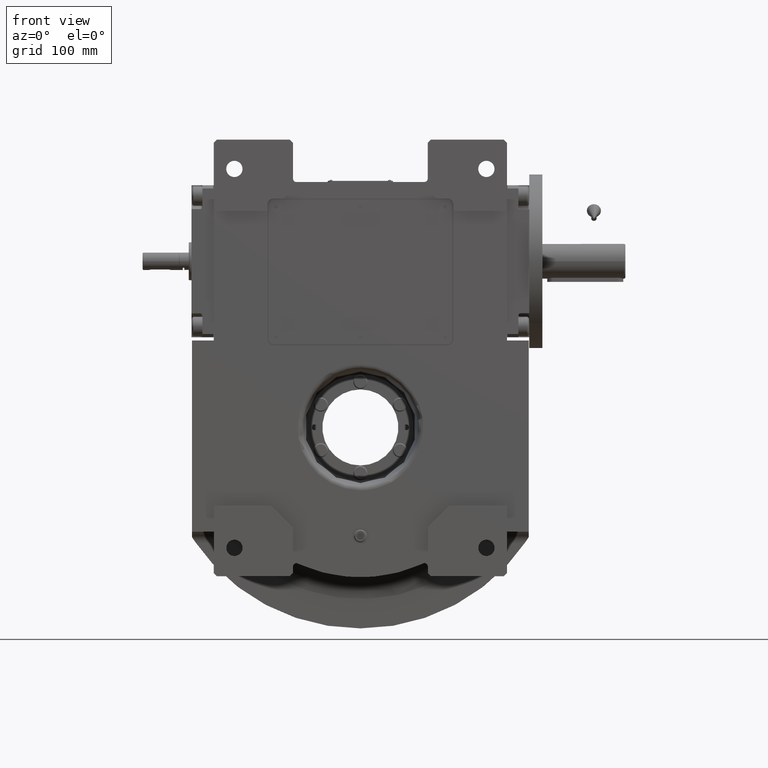
[diagram: clean part render]
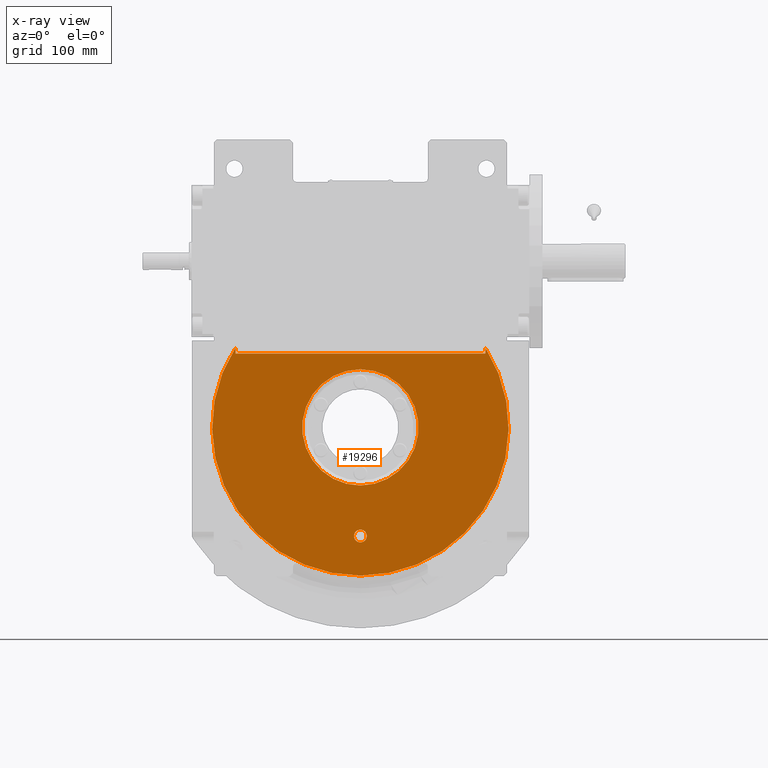
[diagram: x-ray — body ghosted, one internal face saturated and labeled with its STEP entity id]
A machine part, front view, then the same camera in x-ray: the body is ghosted and one INTERNAL B-rep face — a face not visible from any outside direction — is saturated and labeled: STEP entity #19296.
In plain terms, the highlighted planar face has unit normal (0, -1, 0).
Its self-contained STEP definition (entity closure, byte-faithful):
#1072 = VECTOR ( 'NONE', #15453, 1000.000000000000000 ) ;
#1153 = DIRECTION ( 'NONE',  ( 0.000000000000000000, 0.000000000000000000, 1.000000000000000000 ) ) ;
#2693 = FACE_BOUND ( 'NONE', #50567, .T. ) ;
#3188 = CARTESIAN_POINT ( 'NONE',  ( 0.000000000000000000, -63.00000000000000000, 0.000000000000000000 ) ) ;
#3510 = CARTESIAN_POINT ( 'NONE',  ( -115.0000000000000000, -63.00000000000000000, 73.53400573884168523 ) ) ;
#4661 = CARTESIAN_POINT ( 'NONE',  ( 115.0000000000000000, -63.00000000000000000, 73.53400573884168523 ) ) ;
#4923 = CARTESIAN_POINT ( 'NONE',  ( 0.000000000000000000, -63.00000000000000000, -53.50000000000000000 ) ) ;
#5794 = LINE ( 'NONE', #55334, #27702 ) ;
#6087 = CARTESIAN_POINT ( 'NONE',  ( 0.000000000000000000, -63.00000000000000000, -100.0000000000000000 ) ) ;
#6922 = EDGE_CURVE ( 'NONE', #20466, #66816, #22382, .T. ) ;
#8140 = DIRECTION ( 'NONE',  ( 0.000000000000000000, 1.000000000000000000, 0.000000000000000000 ) ) ;
#8317 = EDGE_CURVE ( 'NONE', #66816, #20466, #19549, .T. ) ;
#9203 = CARTESIAN_POINT ( 'NONE',  ( 0.000000000000000000, -63.00000000000000000, 0.000000000000000000 ) ) ;
#11272 = EDGE_CURVE ( 'NONE', #19346, #42800, #67191, .T. ) ;
#11755 = DIRECTION ( 'NONE',  ( 0.000000000000000000, 1.000000000000000000, 0.000000000000000000 ) ) ;
#11895 = EDGE_LOOP ( 'NONE', ( #26723, #18945, #23311, #21326, #60848 ) ) ;
#12621 = CARTESIAN_POINT ( 'NONE',  ( 0.000000000000000000, -63.00000000000000000, -136.5000000000000000 ) ) ;
#12823 = EDGE_CURVE ( 'NONE', #58339, #41203, #20801, .T. ) ;
#12958 = DIRECTION ( 'NONE',  ( 0.000000000000000000, -1.000000000000000000, 1.836909530733564901E-16 ) ) ;
#15453 = DIRECTION ( 'NONE',  ( 0.000000000000000000, 0.000000000000000000, 1.000000000000000000 ) ) ;
#16043 = ORIENTED_EDGE ( 'NONE', *, *, #68227, .F. ) ;
#17121 = DIRECTION ( 'NONE',  ( 0.000000000000000000, 0.000000000000000000, 1.000000000000000000 ) ) ;
#17605 = CARTESIAN_POINT ( 'NONE',  ( 6.551860375438339893E-15, -63.00000000000000000, 53.50000000000000000 ) ) ;
#18945 = ORIENTED_EDGE ( 'NONE', *, *, #29056, .F. ) ;
#19195 = EDGE_LOOP ( 'NONE', ( #16043, #24041 ) ) ;
#19296 = ADVANCED_FACE ( 'NONE', ( #29293, #2693, #39919 ), #29638, .F. ) ;
#19346 = VERTEX_POINT ( 'NONE', #17605 ) ;
#19549 = CIRCLE ( 'NONE', #68140, 5.875000000000000000 ) ;
#19762 = AXIS2_PLACEMENT_3D ( 'NONE', #65763, #12958, #66808 ) ;
#20466 = VERTEX_POINT ( 'NONE', #53568 ) ;
#20598 = DIRECTION ( 'NONE',  ( -1.000000000000000000, 0.000000000000000000, 0.000000000000000000 ) ) ;
#20801 = LINE ( 'NONE', #42390, #1072 ) ;
#21024 = VERTEX_POINT ( 'NONE', #66145 ) ;
#21326 = ORIENTED_EDGE ( 'NONE', *, *, #33975, .T. ) ;
#22382 = CIRCLE ( 'NONE', #47215, 5.875000000000000000 ) ;
#23311 = ORIENTED_EDGE ( 'NONE', *, *, #58942, .T. ) ;
#24041 = ORIENTED_EDGE ( 'NONE', *, *, #11272, .F. ) ;
#24823 = DIRECTION ( 'NONE',  ( 0.000000000000000000, 0.000000000000000000, 1.000000000000000000 ) ) ;
#25537 = DIRECTION ( 'NONE',  ( 0.000000000000000000, 0.000000000000000000, 1.000000000000000000 ) ) ;
#26219 = CIRCLE ( 'NONE', #52161, 53.50000000000000000 ) ;
#26723 = ORIENTED_EDGE ( 'NONE', *, *, #12823, .F. ) ;
#27702 = VECTOR ( 'NONE', #17121, 1000.000000000000000 ) ;
#27730 = DIRECTION ( 'NONE',  ( -1.209434443846979996E-15, -1.000000000000000000, 1.209434443846979996E-15 ) ) ;
#28465 = AXIS2_PLACEMENT_3D ( 'NONE', #3188, #8140, #24823 ) ;
#29001 = CARTESIAN_POINT ( 'NONE',  ( 0.000000000000000000, -62.99999999999998579, 67.99999999999997158 ) ) ;
#29056 = EDGE_CURVE ( 'NONE', #21024, #58339, #54220, .T. ) ;
#29293 = FACE_OUTER_BOUND ( 'NONE', #11895, .T. ) ;
#29638 = PLANE ( 'NONE',  #19762 ) ;
#32224 = DIRECTION ( 'NONE',  ( 0.000000000000000000, 1.000000000000000000, 0.000000000000000000 ) ) ;
#33391 = DIRECTION ( 'NONE',  ( 0.000000000000000000, 1.000000000000000000, 0.000000000000000000 ) ) ;
#33402 = AXIS2_PLACEMENT_3D ( 'NONE', #9203, #32224, #25537 ) ;
#33975 = EDGE_CURVE ( 'NONE', #59093, #47946, #58961, .T. ) ;
#37153 = VECTOR ( 'NONE', #37597, 1000.000000000000000 ) ;
#37597 = DIRECTION ( 'NONE',  ( -1.000000000000000000, 0.000000000000000000, 0.000000000000000000 ) ) ;
#39919 = FACE_BOUND ( 'NONE', #19195, .T. ) ;
#41203 = VERTEX_POINT ( 'NONE', #3510 ) ;
#42283 = ORIENTED_EDGE ( 'NONE', *, *, #8317, .T. ) ;
#42390 = CARTESIAN_POINT ( 'NONE',  ( -115.0000000000000000, -63.00000000000000000, 0.000000000000000000 ) ) ;
#42800 = VERTEX_POINT ( 'NONE', #4923 ) ;
#47215 = AXIS2_PLACEMENT_3D ( 'NONE', #6087, #27730, #49286 ) ;
#47470 = DIRECTION ( 'NONE',  ( 0.000000000000000000, -1.000000000000000000, 0.000000000000000000 ) ) ;
#47946 = VERTEX_POINT ( 'NONE', #12621 ) ;
#48091 = CIRCLE ( 'NONE', #33402, 136.5000000000000000 ) ;
#48269 = DIRECTION ( 'NONE',  ( 0.000000000000000000, 0.000000000000000000, 1.000000000000000000 ) ) ;
#48619 = CARTESIAN_POINT ( 'NONE',  ( 0.000000000000000000, -63.00000000000000000, 0.000000000000000000 ) ) ;
#49056 = EDGE_CURVE ( 'NONE', #47946, #41203, #48091, .T. ) ;
#49286 = DIRECTION ( 'NONE',  ( 1.000000000000000000, -2.362176648138630895E-15, 0.000000000000000000 ) ) ;
#50567 = EDGE_LOOP ( 'NONE', ( #64659, #42283 ) ) ;
#52161 = AXIS2_PLACEMENT_3D ( 'NONE', #54269, #11755, #1153 ) ;
#52440 = CARTESIAN_POINT ( 'NONE',  ( 0.000000000000000000, -63.00000000000000000, -100.0000000000000000 ) ) ;
#53338 = CARTESIAN_POINT ( 'NONE',  ( -115.0000000000000000, -63.00000000000000000, 67.99999999999997158 ) ) ;
#53568 = CARTESIAN_POINT ( 'NONE',  ( 5.875000000000000000, -63.00000000000000000, -100.0000000000000000 ) ) ;
#54220 = LINE ( 'NONE', #29001, #37153 ) ;
#54269 = CARTESIAN_POINT ( 'NONE',  ( 0.000000000000000000, -63.00000000000000000, 0.000000000000000000 ) ) ;
#55334 = CARTESIAN_POINT ( 'NONE',  ( 115.0000000000000000, -63.00000000000000000, 0.000000000000000000 ) ) ;
#58339 = VERTEX_POINT ( 'NONE', #53338 ) ;
#58942 = EDGE_CURVE ( 'NONE', #21024, #59093, #5794, .T. ) ;
#58961 = CIRCLE ( 'NONE', #28465, 136.5000000000000000 ) ;
#59093 = VERTEX_POINT ( 'NONE', #4661 ) ;
#60848 = ORIENTED_EDGE ( 'NONE', *, *, #49056, .T. ) ;
#61378 = CARTESIAN_POINT ( 'NONE',  ( -5.875000000000000000, -63.00000000000000000, -100.0000000000000000 ) ) ;
#62674 = AXIS2_PLACEMENT_3D ( 'NONE', #48619, #33391, #48269 ) ;
#64659 = ORIENTED_EDGE ( 'NONE', *, *, #6922, .T. ) ;
#65763 = CARTESIAN_POINT ( 'NONE',  ( 0.000000000000000000, -63.00000000000000000, 2.534751534906250014E-14 ) ) ;
#66145 = CARTESIAN_POINT ( 'NONE',  ( 115.0000000000000000, -63.00000000000000000, 67.99999999999997158 ) ) ;
#66808 = DIRECTION ( 'NONE',  ( 0.000000000000000000, 1.836909530733564901E-16, 1.000000000000000000 ) ) ;
#66816 = VERTEX_POINT ( 'NONE', #61378 ) ;
#67191 = CIRCLE ( 'NONE', #62674, 53.50000000000000000 ) ;
#68140 = AXIS2_PLACEMENT_3D ( 'NONE', #52440, #47470, #20598 ) ;
#68227 = EDGE_CURVE ( 'NONE', #42800, #19346, #26219, .T. ) ;